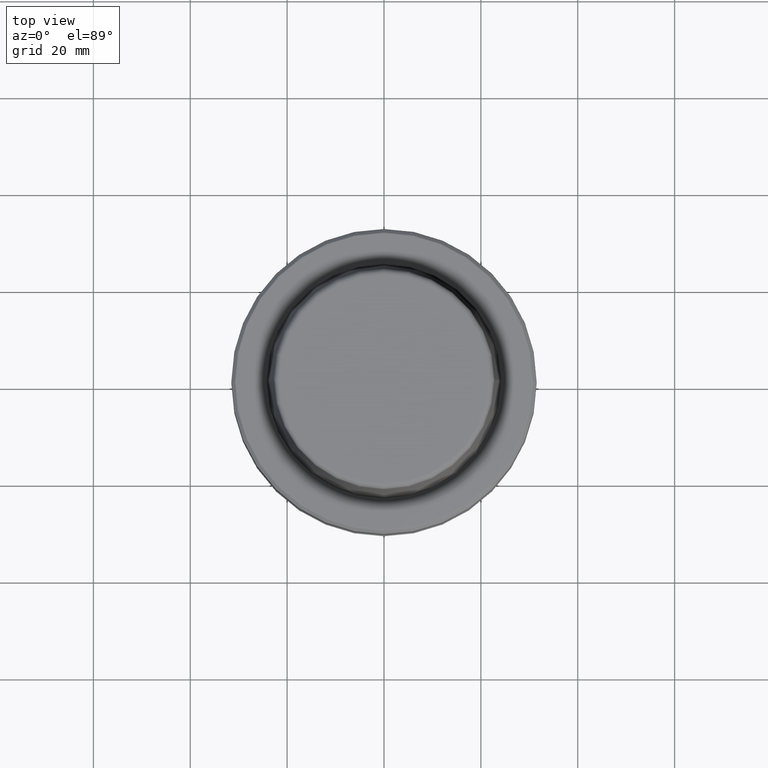
[diagram: clean part render]
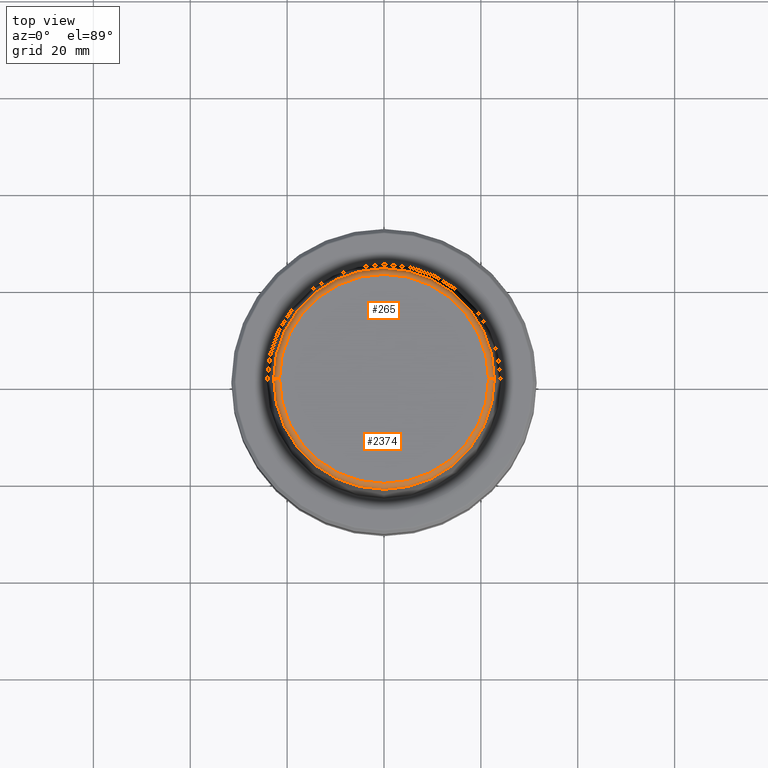
[diagram: same view with one multi-face feature highlighted, each face labeled with its STEP entity id]
A machine part, top view. The highlighted faces form ONE feature: a constant-radius fillet chain: 2 tangent blend faces with common blend radius 1.2 mm. The faces share edges in the B-rep.
Their STEP definitions:
[1] entity #2374 (Torus):
#95 = DIRECTION ( 'NONE',  ( -0.0000000000000000000, -0.0000000000000000000, 1.000000000000000000 ) ) ;
#195 = VERTEX_POINT ( 'NONE', #2806 ) ;
#206 = AXIS2_PLACEMENT_3D ( 'NONE', #864, #2505, #1097 ) ;
#222 = FACE_OUTER_BOUND ( 'NONE', #1216, .T. ) ;
#240 = DIRECTION ( 'NONE',  ( 1.224646799147353200E-016, 1.000000000000000000, 0.0000000000000000000 ) ) ;
#277 = AXIS2_PLACEMENT_3D ( 'NONE', #554, #95, #2189 ) ;
#359 = ORIENTED_EDGE ( 'NONE', *, *, #825, .F. ) ;
#554 = CARTESIAN_POINT ( 'NONE',  ( 0.0000000000000000000, 0.0000000000000000000, 30.69999999999999200 ) ) ;
#558 = CARTESIAN_POINT ( 'NONE',  ( -21.58108272732117100, 2.716307157494421400E-015, 31.89999999999999900 ) ) ;
#825 = EDGE_CURVE ( 'NONE', #195, #1866, #1227, .T. ) ;
#864 = CARTESIAN_POINT ( 'NONE',  ( 21.58108272732117100, 0.0000000000000000000, 30.69999999999999200 ) ) ;
#1007 = CARTESIAN_POINT ( 'NONE',  ( 0.0000000000000000000, 0.0000000000000000000, 31.89999999999999900 ) ) ;
#1097 = DIRECTION ( 'NONE',  ( 0.0000000000000000000, 0.0000000000000000000, -1.000000000000000000 ) ) ;
#1216 = EDGE_LOOP ( 'NONE', ( #359, #2708, #2316, #2729 ) ) ;
#1227 = CIRCLE ( 'NONE', #1462, 1.200000000000003100 ) ;
#1245 = DIRECTION ( 'NONE',  ( 1.000000000000000000, 0.0000000000000000000, 0.0000000000000000000 ) ) ;
#1328 = EDGE_CURVE ( 'NONE', #2644, #1842, #2317, .T. ) ;
#1352 = CARTESIAN_POINT ( 'NONE',  ( 0.0000000000000000000, 0.0000000000000000000, 30.76004333261571900 ) ) ;
#1379 = DIRECTION ( 'NONE',  ( -1.000000000000000000, 1.224646799147353200E-016, 0.0000000000000000000 ) ) ;
#1462 = AXIS2_PLACEMENT_3D ( 'NONE', #2699, #240, #1379 ) ;
#1576 = DIRECTION ( 'NONE',  ( 1.000000000000000000, 0.0000000000000000000, 0.0000000000000000000 ) ) ;
#1690 = CIRCLE ( 'NONE', #2788, 21.58108272732117100 ) ;
#1728 = CARTESIAN_POINT ( 'NONE',  ( 21.58108272732117100, 0.0000000000000000000, 31.89999999999999900 ) ) ;
#1819 = EDGE_CURVE ( 'NONE', #1866, #1842, #1690, .T. ) ;
#1842 = VERTEX_POINT ( 'NONE', #1728 ) ;
#1866 = VERTEX_POINT ( 'NONE', #558 ) ;
#1961 = CIRCLE ( 'NONE', #2883, 22.77957961851797100 ) ;
#2134 = EDGE_CURVE ( 'NONE', #195, #2644, #1961, .T. ) ;
#2189 = DIRECTION ( 'NONE',  ( 1.000000000000000000, 0.0000000000000000000, 0.0000000000000000000 ) ) ;
#2316 = ORIENTED_EDGE ( 'NONE', *, *, #1328, .T. ) ;
#2317 = CIRCLE ( 'NONE', #206, 1.200000000000003100 ) ;
#2374 = ADVANCED_FACE ( 'NONE', ( #222 ), #2553, .T. ) ;
#2505 = DIRECTION ( 'NONE',  ( 0.0000000000000000000, -1.000000000000000000, 0.0000000000000000000 ) ) ;
#2553 = TOROIDAL_SURFACE ( 'NONE', #277, 21.58108272732117100, 1.200000000000003100 ) ;
#2644 = VERTEX_POINT ( 'NONE', #2946 ) ;
#2647 = DIRECTION ( 'NONE',  ( -0.0000000000000000000, -0.0000000000000000000, 1.000000000000000000 ) ) ;
#2699 = CARTESIAN_POINT ( 'NONE',  ( -21.58108272732117100, 2.642920388414810300E-015, 30.69999999999999200 ) ) ;
#2708 = ORIENTED_EDGE ( 'NONE', *, *, #2134, .T. ) ;
#2729 = ORIENTED_EDGE ( 'NONE', *, *, #1819, .F. ) ;
#2788 = AXIS2_PLACEMENT_3D ( 'NONE', #1007, #2647, #1245 ) ;
#2806 = CARTESIAN_POINT ( 'NONE',  ( -22.77957961851797100, 0.0000000000000000000, 30.76004333261571900 ) ) ;
#2883 = AXIS2_PLACEMENT_3D ( 'NONE', #1352, #2963, #1576 ) ;
#2946 = CARTESIAN_POINT ( 'NONE',  ( 22.77957961851797100, 2.874852597157249900E-015, 30.76004333261571900 ) ) ;
#2963 = DIRECTION ( 'NONE',  ( -0.0000000000000000000, -0.0000000000000000000, 1.000000000000000000 ) ) ;
[2] entity #265 (Torus):
#195 = VERTEX_POINT ( 'NONE', #2806 ) ;
#206 = AXIS2_PLACEMENT_3D ( 'NONE', #864, #2505, #1097 ) ;
#212 = CARTESIAN_POINT ( 'NONE',  ( 0.0000000000000000000, 0.0000000000000000000, 30.76004333261571900 ) ) ;
#240 = DIRECTION ( 'NONE',  ( 1.224646799147353200E-016, 1.000000000000000000, 0.0000000000000000000 ) ) ;
#265 = ADVANCED_FACE ( 'NONE', ( #1971 ), #733, .T. ) ;
#365 = AXIS2_PLACEMENT_3D ( 'NONE', #212, #679, #2564 ) ;
#439 = CARTESIAN_POINT ( 'NONE',  ( 0.0000000000000000000, 0.0000000000000000000, 31.89999999999999900 ) ) ;
#558 = CARTESIAN_POINT ( 'NONE',  ( -21.58108272732117100, 2.716307157494421400E-015, 31.89999999999999900 ) ) ;
#677 = DIRECTION ( 'NONE',  ( 1.000000000000000000, 0.0000000000000000000, 0.0000000000000000000 ) ) ;
#679 = DIRECTION ( 'NONE',  ( -0.0000000000000000000, -0.0000000000000000000, 1.000000000000000000 ) ) ;
#733 = TOROIDAL_SURFACE ( 'NONE', #2117, 21.58108272732117100, 1.200000000000003100 ) ;
#765 = EDGE_CURVE ( 'NONE', #2644, #195, #1514, .T. ) ;
#825 = EDGE_CURVE ( 'NONE', #195, #1866, #1227, .T. ) ;
#864 = CARTESIAN_POINT ( 'NONE',  ( 21.58108272732117100, 0.0000000000000000000, 30.69999999999999200 ) ) ;
#915 = CARTESIAN_POINT ( 'NONE',  ( 0.0000000000000000000, 0.0000000000000000000, 30.69999999999999200 ) ) ;
#1097 = DIRECTION ( 'NONE',  ( 0.0000000000000000000, 0.0000000000000000000, -1.000000000000000000 ) ) ;
#1173 = ORIENTED_EDGE ( 'NONE', *, *, #765, .T. ) ;
#1227 = CIRCLE ( 'NONE', #1462, 1.200000000000003100 ) ;
#1328 = EDGE_CURVE ( 'NONE', #2644, #1842, #2317, .T. ) ;
#1379 = DIRECTION ( 'NONE',  ( -1.000000000000000000, 1.224646799147353200E-016, 0.0000000000000000000 ) ) ;
#1399 = EDGE_CURVE ( 'NONE', #1842, #1866, #1473, .T. ) ;
#1462 = AXIS2_PLACEMENT_3D ( 'NONE', #2699, #240, #1379 ) ;
#1473 = CIRCLE ( 'NONE', #1606, 21.58108272732117100 ) ;
#1514 = CIRCLE ( 'NONE', #365, 22.77957961851797100 ) ;
#1606 = AXIS2_PLACEMENT_3D ( 'NONE', #439, #2075, #677 ) ;
#1660 = ORIENTED_EDGE ( 'NONE', *, *, #1328, .F. ) ;
#1728 = CARTESIAN_POINT ( 'NONE',  ( 21.58108272732117100, 0.0000000000000000000, 31.89999999999999900 ) ) ;
#1842 = VERTEX_POINT ( 'NONE', #1728 ) ;
#1866 = VERTEX_POINT ( 'NONE', #558 ) ;
#1874 = DIRECTION ( 'NONE',  ( 1.000000000000000000, 0.0000000000000000000, 0.0000000000000000000 ) ) ;
#1971 = FACE_OUTER_BOUND ( 'NONE', #2649, .T. ) ;
#2075 = DIRECTION ( 'NONE',  ( -0.0000000000000000000, -0.0000000000000000000, 1.000000000000000000 ) ) ;
#2117 = AXIS2_PLACEMENT_3D ( 'NONE', #915, #2365, #1874 ) ;
#2317 = CIRCLE ( 'NONE', #206, 1.200000000000003100 ) ;
#2365 = DIRECTION ( 'NONE',  ( -0.0000000000000000000, -0.0000000000000000000, 1.000000000000000000 ) ) ;
#2505 = DIRECTION ( 'NONE',  ( 0.0000000000000000000, -1.000000000000000000, 0.0000000000000000000 ) ) ;
#2564 = DIRECTION ( 'NONE',  ( 1.000000000000000000, 0.0000000000000000000, 0.0000000000000000000 ) ) ;
#2632 = ORIENTED_EDGE ( 'NONE', *, *, #1399, .F. ) ;
#2644 = VERTEX_POINT ( 'NONE', #2946 ) ;
#2649 = EDGE_LOOP ( 'NONE', ( #1173, #2923, #2632, #1660 ) ) ;
#2699 = CARTESIAN_POINT ( 'NONE',  ( -21.58108272732117100, 2.642920388414810300E-015, 30.69999999999999200 ) ) ;
#2806 = CARTESIAN_POINT ( 'NONE',  ( -22.77957961851797100, 0.0000000000000000000, 30.76004333261571900 ) ) ;
#2923 = ORIENTED_EDGE ( 'NONE', *, *, #825, .T. ) ;
#2946 = CARTESIAN_POINT ( 'NONE',  ( 22.77957961851797100, 2.874852597157249900E-015, 30.76004333261571900 ) ) ;